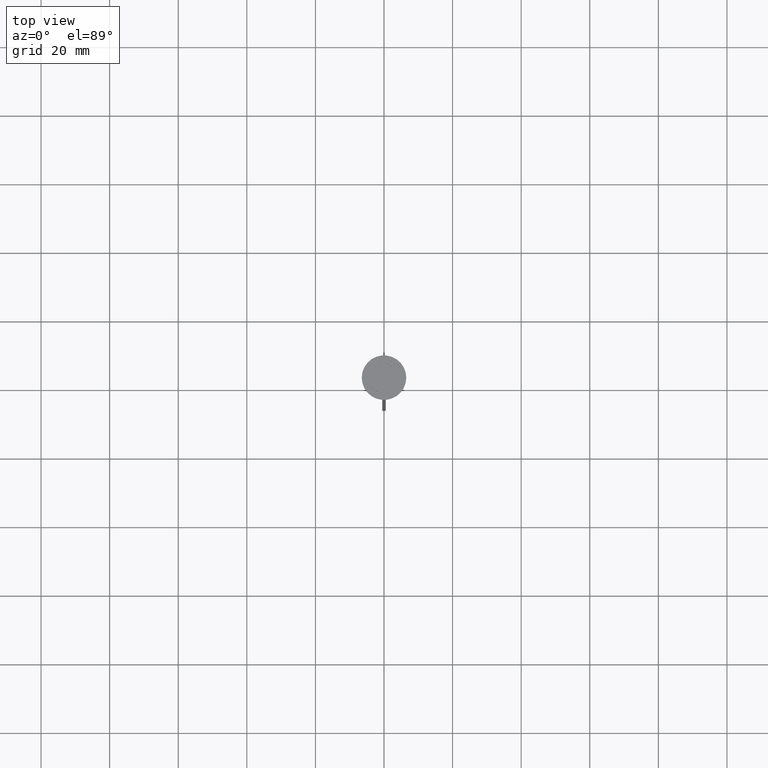
[diagram: clean part render]
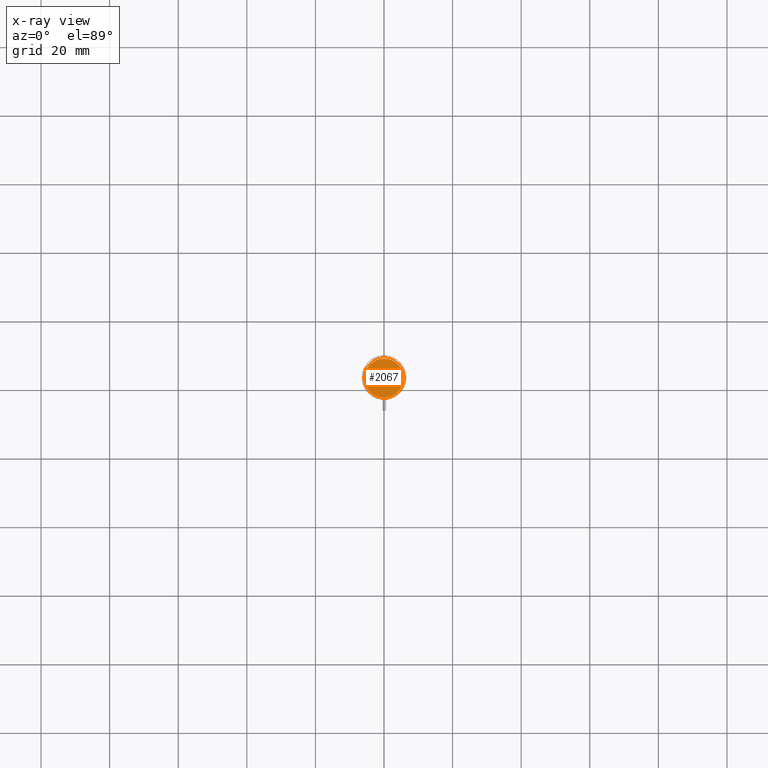
[diagram: x-ray — body ghosted, one internal face saturated and labeled with its STEP entity id]
A machine part, top view, then the same camera in x-ray: the body is ghosted and one INTERNAL B-rep face — a face not visible from any outside direction — is saturated and labeled: STEP entity #2067.
In plain terms, the highlighted planar face has unit normal (0, 0, -1).
Its self-contained STEP definition (entity closure, byte-faithful):
#26 = EDGE_CURVE ( 'NONE', #1164, #1005, #1549, .T. ) ;
#44 = CARTESIAN_POINT ( 'NONE',  ( 0.000000000000000000, 0.000000000000000000, -10.50000000000000178 ) ) ;
#62 = CARTESIAN_POINT ( 'NONE',  ( 5.700000000000002842, 7.164183775012019380E-16, -10.50000000000000178 ) ) ;
#174 = ORIENTED_EDGE ( 'NONE', *, *, #1186, .T. ) ;
#220 = ORIENTED_EDGE ( 'NONE', *, *, #26, .T. ) ;
#666 = DIRECTION ( 'NONE',  ( -0.000000000000000000, -0.000000000000000000, 1.000000000000000000 ) ) ;
#698 = CIRCLE ( 'NONE', #1519, 5.700000000000002842 ) ;
#780 = DIRECTION ( 'NONE',  ( -1.000000000000000000, 0.000000000000000000, 0.000000000000000000 ) ) ;
#1003 = PLANE ( 'NONE',  #1097 ) ;
#1005 = VERTEX_POINT ( 'NONE', #1314 ) ;
#1018 = FACE_OUTER_BOUND ( 'NONE', #2004, .T. ) ;
#1097 = AXIS2_PLACEMENT_3D ( 'NONE', #1949, #1586, #1774 ) ;
#1100 = AXIS2_PLACEMENT_3D ( 'NONE', #44, #1773, #780 ) ;
#1164 = VERTEX_POINT ( 'NONE', #62 ) ;
#1186 = EDGE_CURVE ( 'NONE', #1005, #1164, #698, .T. ) ;
#1314 = CARTESIAN_POINT ( 'NONE',  ( -5.700000000000002842, 0.000000000000000000, -10.50000000000000178 ) ) ;
#1519 = AXIS2_PLACEMENT_3D ( 'NONE', #2186, #666, #2381 ) ;
#1549 = CIRCLE ( 'NONE', #1100, 5.700000000000002842 ) ;
#1586 = DIRECTION ( 'NONE',  ( 0.000000000000000000, 0.000000000000000000, -1.000000000000000000 ) ) ;
#1773 = DIRECTION ( 'NONE',  ( -0.000000000000000000, -0.000000000000000000, 1.000000000000000000 ) ) ;
#1774 = DIRECTION ( 'NONE',  ( -1.000000000000000000, 0.000000000000000000, -0.000000000000000000 ) ) ;
#1949 = CARTESIAN_POINT ( 'NONE',  ( 0.000000000000000000, 0.000000000000000000, -10.50000000000000178 ) ) ;
#2004 = EDGE_LOOP ( 'NONE', ( #174, #220 ) ) ;
#2067 = ADVANCED_FACE ( 'NONE', ( #1018 ), #1003, .F. ) ;
#2186 = CARTESIAN_POINT ( 'NONE',  ( 0.000000000000000000, 0.000000000000000000, -10.50000000000000178 ) ) ;
#2381 = DIRECTION ( 'NONE',  ( -1.000000000000000000, 0.000000000000000000, 0.000000000000000000 ) ) ;